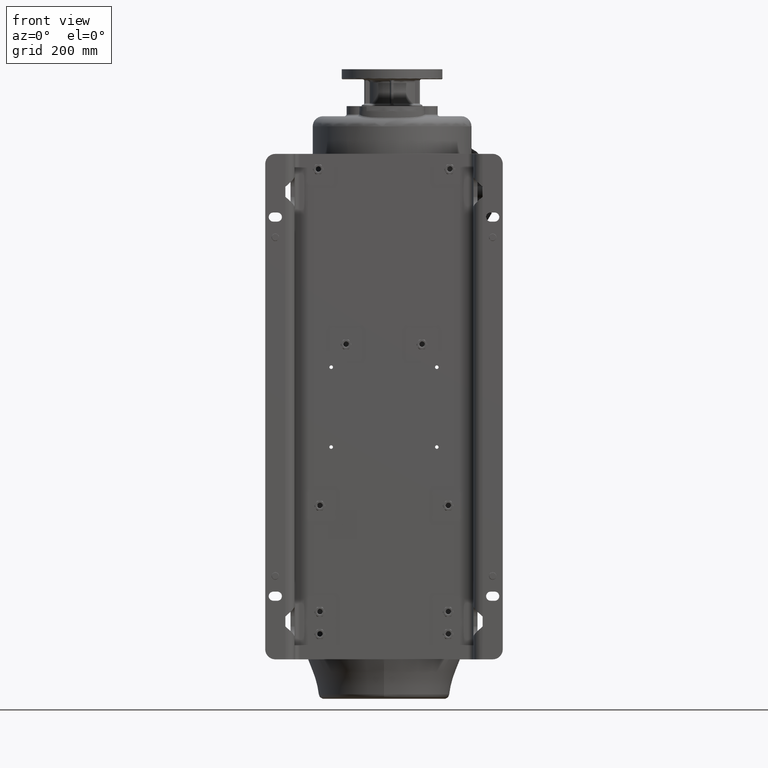
[diagram: clean part render]
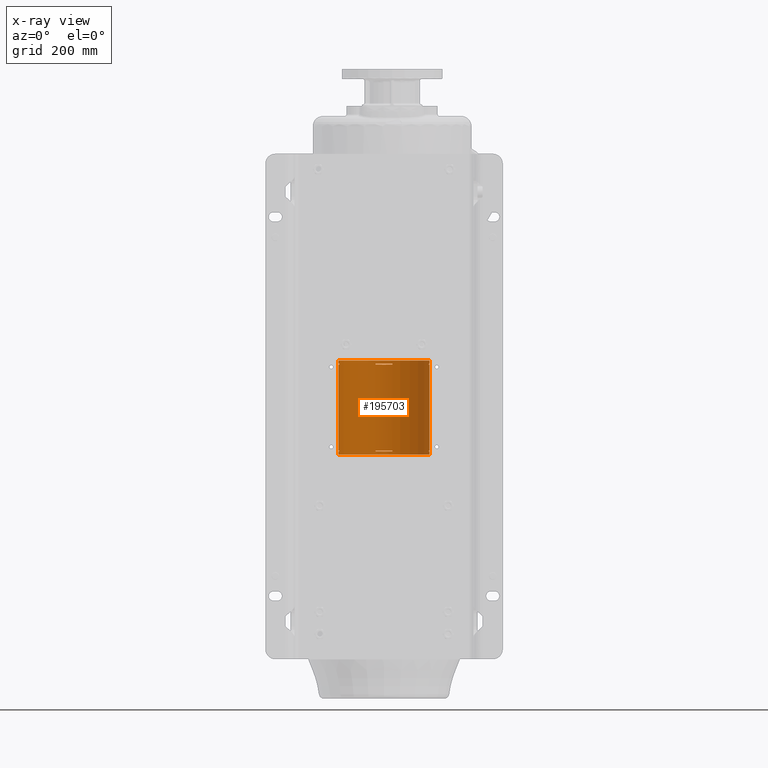
[diagram: x-ray — body ghosted, one internal face saturated and labeled with its STEP entity id]
A machine part, front view, then the same camera in x-ray: the body is ghosted and one INTERNAL B-rep face — a face not visible from any outside direction — is saturated and labeled: STEP entity #195703.
In plain terms, the highlighted cylindrical surface (partial cylindrical patch) has radius 90 mm, axis along (0, 0, 1).
Its self-contained STEP definition (entity closure, byte-faithful):
#61992=DIRECTION('',(0.E0,0.E0,-1.E0));
#61993=VECTOR('',#61992,1.696E2);
#61994=CARTESIAN_POINT('',(9.E1,1.6E2,-3.867E2));
#61995=LINE('',#61994,#61993);
#62020=DIRECTION('',(2.623542408960E-14,-1.128123235853E-12,-1.E0));
#62021=VECTOR('',#62020,6.5E0);
#62022=CARTESIAN_POINT('',(9.E1,1.6E2,-3.785E2));
#62023=LINE('',#62022,#62021);
#62033=DIRECTION('',(-2.842170943040E-14,1.128123235853E-12,-1.E0));
#62034=VECTOR('',#62033,6.5E0);
#62035=CARTESIAN_POINT('',(9.E1,1.6E2,-5.58E2));
#62036=LINE('',#62035,#62034);
#63404=CARTESIAN_POINT('',(-3.268496484496E-13,1.6E2,-5.645E2));
#63405=DIRECTION('',(0.E0,0.E0,1.E0));
#63406=DIRECTION('',(1.E0,0.E0,0.E0));
#63407=AXIS2_PLACEMENT_3D('',#63404,#63405,#63406);
#63418=CARTESIAN_POINT('',(-3.268496484496E-13,1.6E2,-5.565E2));
#63419=DIRECTION('',(0.E0,0.E0,1.E0));
#63420=DIRECTION('',(9.966335747907E-1,8.198486201713E-2,0.E0));
#63421=AXIS2_PLACEMENT_3D('',#63418,#63419,#63420);
#63423=DIRECTION('',(2.842170943040E-14,-7.579122514774E-14,1.E0));
#63424=VECTOR('',#63423,1.5E0);
#63425=CARTESIAN_POINT('',(8.847327330818E1,1.765069655036E2,-5.58E2));
#63426=LINE('',#63425,#63424);
#63427=CARTESIAN_POINT('',(-3.268496484496E-13,1.6E2,-5.58E2));
#63428=DIRECTION('',(0.E0,0.E0,1.E0));
#63429=DIRECTION('',(9.966335747907E-1,8.198486201713E-2,0.E0));
#63430=AXIS2_PLACEMENT_3D('',#63427,#63428,#63429);
#63432=CARTESIAN_POINT('',(-3.268496484496E-13,1.6E2,-5.58E2));
#63433=DIRECTION('',(0.E0,0.E0,1.E0));
#63434=DIRECTION('',(9.970736659799E-1,7.644674361577E-2,0.E0));
#63435=AXIS2_PLACEMENT_3D('',#63432,#63433,#63434);
#63437=CARTESIAN_POINT('',(-3.268496484496E-13,1.6E2,-5.58E2));
#63438=DIRECTION('',(0.E0,0.E0,1.E0));
#63439=DIRECTION('',(1.E0,-4.743267507163E-13,0.E0));
#63440=AXIS2_PLACEMENT_3D('',#63437,#63438,#63439);
#63442=DIRECTION('',(-2.186285340800E-14,-1.149986089261E-12,-1.E0));
#63443=VECTOR('',#63442,6.5E0);
#63444=CARTESIAN_POINT('',(-9.E1,1.6E2,-5.58E2));
#63445=LINE('',#63444,#63443);
#63446=CARTESIAN_POINT('',(-3.268496484496E-13,1.6E2,-5.58E2));
#63447=DIRECTION('',(0.E0,0.E0,1.E0));
#63448=DIRECTION('',(-9.970736659799E-1,7.644674361539E-2,0.E0));
#63449=AXIS2_PLACEMENT_3D('',#63446,#63447,#63448);
#63451=CARTESIAN_POINT('',(-3.268496484496E-13,1.6E2,-5.58E2));
#63452=DIRECTION('',(0.E0,0.E0,1.E0));
#63453=DIRECTION('',(-9.966335747907E-1,8.198486201730E-2,0.E0));
#63454=AXIS2_PLACEMENT_3D('',#63451,#63452,#63453);
#63456=CARTESIAN_POINT('',(-3.268496484496E-13,1.6E2,-5.58E2));
#63457=DIRECTION('',(0.E0,0.E0,1.E0));
#63458=DIRECTION('',(-9.830363700909E-1,1.834107278174E-1,0.E0));
#63459=AXIS2_PLACEMENT_3D('',#63456,#63457,#63458);
#63461=DIRECTION('',(-3.789561257387E-14,-2.084258691563E-13,1.E0));
#63462=VECTOR('',#63461,1.5E0);
#63463=CARTESIAN_POINT('',(-8.847327330818E1,1.765069655036E2,-5.58E2));
#63464=LINE('',#63463,#63462);
#63465=CARTESIAN_POINT('',(-3.268496484496E-13,1.6E2,-5.565E2));
#63466=DIRECTION('',(0.E0,0.E0,1.E0));
#63467=DIRECTION('',(-9.830363700909E-1,1.834107278174E-1,0.E0));
#63468=AXIS2_PLACEMENT_3D('',#63465,#63466,#63467);
#63470=DIRECTION('',(-2.202682480856E-12,-1.833200258261E-11,1.E0));
#63471=VECTOR('',#63470,2.E-1);
#63472=CARTESIAN_POINT('',(-8.969702173116E1,1.673786375816E2,-5.565E2));
#63473=LINE('',#63472,#63471);
#63474=CARTESIAN_POINT('',(-3.268496484496E-13,1.6E2,-5.563E2));
#63475=DIRECTION('',(0.E0,0.E0,1.E0));
#63476=DIRECTION('',(-9.966335747907E-1,8.198486201730E-2,0.E0));
#63477=AXIS2_PLACEMENT_3D('',#63474,#63475,#63476);
#63479=DIRECTION('',(0.E0,0.E0,-1.E0));
#63480=VECTOR('',#63479,1.696E2);
#63481=CARTESIAN_POINT('',(-9.E1,1.6E2,-3.867E2));
#63482=LINE('',#63481,#63480);
#63483=CARTESIAN_POINT('',(-3.268496484496E-13,1.6E2,-3.867E2));
#63484=DIRECTION('',(0.E0,0.E0,1.E0));
#63485=DIRECTION('',(-9.966335747907E-1,8.198486201730E-2,0.E0));
#63486=AXIS2_PLACEMENT_3D('',#63483,#63484,#63485);
#63488=DIRECTION('',(2.557953848737E-12,2.188471626142E-11,1.E0));
#63489=VECTOR('',#63488,1.999999999999E-1);
#63490=CARTESIAN_POINT('',(-8.969702173116E1,1.673786375816E2,-3.867E2));
#63491=LINE('',#63490,#63489);
#63492=CARTESIAN_POINT('',(-3.268496484496E-13,1.6E2,-3.865E2));
#63493=DIRECTION('',(0.E0,0.E0,1.E0));
#63494=DIRECTION('',(-9.830363700909E-1,1.834107278174E-1,0.E0));
#63495=AXIS2_PLACEMENT_3D('',#63492,#63493,#63494);
#63497=DIRECTION('',(0.E0,0.E0,1.E0));
#63498=VECTOR('',#63497,1.5E0);
#63499=CARTESIAN_POINT('',(-8.847327330818E1,1.765069655036E2,-3.865E2));
#63500=LINE('',#63499,#63498);
#63501=CARTESIAN_POINT('',(-3.268496484496E-13,1.6E2,-3.85E2));
#63502=DIRECTION('',(0.E0,0.E0,1.E0));
#63503=DIRECTION('',(-9.830363700909E-1,1.834107278174E-1,0.E0));
#63504=AXIS2_PLACEMENT_3D('',#63501,#63502,#63503);
#63506=CARTESIAN_POINT('',(-3.268496484496E-13,1.6E2,-3.85E2));
#63507=DIRECTION('',(0.E0,0.E0,1.E0));
#63508=DIRECTION('',(-9.966335747907E-1,8.198486201730E-2,0.E0));
#63509=AXIS2_PLACEMENT_3D('',#63506,#63507,#63508);
#63511=CARTESIAN_POINT('',(-3.268496484496E-13,1.6E2,-3.85E2));
#63512=DIRECTION('',(0.E0,0.E0,1.E0));
#63513=DIRECTION('',(-9.970736659799E-1,7.644674361537E-2,0.E0));
#63514=AXIS2_PLACEMENT_3D('',#63511,#63512,#63513);
#63516=DIRECTION('',(2.404913874880E-14,1.106260382445E-12,-1.E0));
#63517=VECTOR('',#63516,6.5E0);
#63518=CARTESIAN_POINT('',(-9.E1,1.6E2,-3.785E2));
#63519=LINE('',#63518,#63517);
#63520=CARTESIAN_POINT('',(-3.268496484496E-13,1.6E2,-3.85E2));
#63521=DIRECTION('',(0.E0,0.E0,1.E0));
#63522=DIRECTION('',(1.E0,-4.730635636305E-13,0.E0));
#63523=AXIS2_PLACEMENT_3D('',#63520,#63521,#63522);
#63525=CARTESIAN_POINT('',(-3.268496484496E-13,1.6E2,-3.85E2));
#63526=DIRECTION('',(0.E0,0.E0,1.E0));
#63527=DIRECTION('',(9.970736659799E-1,7.644674361577E-2,0.E0));
#63528=AXIS2_PLACEMENT_3D('',#63525,#63526,#63527);
#63530=CARTESIAN_POINT('',(-3.268496484496E-13,1.6E2,-3.85E2));
#63531=DIRECTION('',(0.E0,0.E0,1.E0));
#63532=DIRECTION('',(9.966335747907E-1,8.198486201711E-2,0.E0));
#63533=AXIS2_PLACEMENT_3D('',#63530,#63531,#63532);
#63535=DIRECTION('',(0.E0,0.E0,1.E0));
#63536=VECTOR('',#63535,1.5E0);
#63537=CARTESIAN_POINT('',(8.847327330818E1,1.765069655036E2,-3.865E2));
#63538=LINE('',#63537,#63536);
#63539=CARTESIAN_POINT('',(-3.268496484496E-13,1.6E2,-3.865E2));
#63540=DIRECTION('',(0.E0,0.E0,1.E0));
#63541=DIRECTION('',(9.966335747907E-1,8.198486201711E-2,0.E0));
#63542=AXIS2_PLACEMENT_3D('',#63539,#63540,#63541);
#63544=DIRECTION('',(2.557953848737E-12,-2.103206497851E-11,1.E0));
#63545=VECTOR('',#63544,1.999999999999E-1);
#63546=CARTESIAN_POINT('',(8.969702173116E1,1.673786375816E2,-3.867E2));
#63547=LINE('',#63546,#63545);
#63548=CARTESIAN_POINT('',(-3.268496484496E-13,1.6E2,-3.867E2));
#63549=DIRECTION('',(0.E0,0.E0,1.E0));
#63550=DIRECTION('',(1.E0,0.E0,0.E0));
#63551=AXIS2_PLACEMENT_3D('',#63548,#63549,#63550);
#63553=CARTESIAN_POINT('',(-3.268496484496E-13,1.6E2,-5.563E2));
#63554=DIRECTION('',(0.E0,0.E0,1.E0));
#63555=DIRECTION('',(1.E0,0.E0,0.E0));
#63556=AXIS2_PLACEMENT_3D('',#63553,#63554,#63555);
#63558=DIRECTION('',(-2.344791028008E-12,1.875832822406E-11,1.E0));
#63559=VECTOR('',#63558,2.E-1);
#63560=CARTESIAN_POINT('',(8.969702173116E1,1.673786375816E2,-5.565E2));
#63561=LINE('',#63560,#63559);
#63562=CARTESIAN_POINT('',(-3.268496484496E-13,1.6E2,-3.865E2));
#63563=DIRECTION('',(0.E0,0.E0,1.E0));
#63564=DIRECTION('',(1.853932584270E-1,9.826644084986E-1,0.E0));
#63565=AXIS2_PLACEMENT_3D('',#63562,#63563,#63564);
#63567=DIRECTION('',(0.E0,0.E0,1.E0));
#63568=VECTOR('',#63567,1.5E0);
#63569=CARTESIAN_POINT('',(1.668539325843E1,2.484397967649E2,-3.865E2));
#63570=LINE('',#63569,#63568);
#63571=CARTESIAN_POINT('',(-3.268496484496E-13,1.6E2,-3.85E2));
#63572=DIRECTION('',(0.E0,0.E0,1.E0));
#63573=DIRECTION('',(1.853932584270E-1,9.826644084986E-1,0.E0));
#63574=AXIS2_PLACEMENT_3D('',#63571,#63572,#63573);
#63576=CARTESIAN_POINT('',(-3.268496484496E-13,1.6E2,-3.85E2));
#63577=DIRECTION('',(0.E0,0.E0,1.E0));
#63578=DIRECTION('',(4.333135311519E-2,9.990607558288E-1,0.E0));
#63579=AXIS2_PLACEMENT_3D('',#63576,#63577,#63578);
#63581=CARTESIAN_POINT('',(-3.268496484496E-13,1.6E2,-3.85E2));
#63582=DIRECTION('',(0.E0,0.E0,1.E0));
#63583=DIRECTION('',(4.179629629634E-2,9.991261530037E-1,0.E0));
#63584=AXIS2_PLACEMENT_3D('',#63581,#63582,#63583);
#63586=CARTESIAN_POINT('',(-3.268496484496E-13,1.6E2,-3.85E2));
#63587=DIRECTION('',(0.E0,0.E0,1.E0));
#63588=DIRECTION('',(-4.179629629642E-2,9.991261530037E-1,0.E0));
#63589=AXIS2_PLACEMENT_3D('',#63586,#63587,#63588);
#63591=CARTESIAN_POINT('',(-3.268496484496E-13,1.6E2,-3.85E2));
#63592=DIRECTION('',(0.E0,0.E0,1.E0));
#63593=DIRECTION('',(-4.329495734210E-2,9.990623337254E-1,0.E0));
#63594=AXIS2_PLACEMENT_3D('',#63591,#63592,#63593);
#63596=DIRECTION('',(0.E0,-1.894780628694E-14,1.E0));
#63597=VECTOR('',#63596,1.5E0);
#63598=CARTESIAN_POINT('',(-1.668539325843E1,2.484397967649E2,-3.865E2));
#63599=LINE('',#63598,#63597);
#63600=CARTESIAN_POINT('',(-3.268496484496E-13,1.6E2,-3.865E2));
#63601=DIRECTION('',(0.E0,0.E0,1.E0));
#63602=DIRECTION('',(-4.329495734210E-2,9.990623337254E-1,0.E0));
#63603=AXIS2_PLACEMENT_3D('',#63600,#63601,#63602);
#63605=DIRECTION('',(0.E0,7.105427357603E-13,-1.E0));
#63606=VECTOR('',#63605,1.999999999999E-1);
#63607=CARTESIAN_POINT('',(-3.896546160789E0,2.499156100353E2,-3.865E2));
#63608=LINE('',#63607,#63606);
#63609=CARTESIAN_POINT('',(-3.268496484496E-13,1.6E2,-3.867E2));
#63610=DIRECTION('',(0.E0,0.E0,1.E0));
#63611=DIRECTION('',(4.333135311519E-2,9.990607558288E-1,0.E0));
#63612=AXIS2_PLACEMENT_3D('',#63609,#63610,#63611);
#63614=DIRECTION('',(1.509903313491E-13,7.105427357603E-13,-1.E0));
#63615=VECTOR('',#63614,1.999999999999E-1);
#63616=CARTESIAN_POINT('',(3.899821780367E0,2.499154680246E2,-3.865E2));
#63617=LINE('',#63616,#63615);
#63618=CARTESIAN_POINT('',(-3.268496484496E-13,1.6E2,-5.565E2));
#63619=DIRECTION('',(0.E0,0.E0,1.E0));
#63620=DIRECTION('',(1.853932584270E-1,9.826644084986E-1,0.E0));
#63621=AXIS2_PLACEMENT_3D('',#63618,#63619,#63620);
#63623=DIRECTION('',(7.105427357599E-14,5.684341886080E-13,1.E0));
#63624=VECTOR('',#63623,2.E-1);
#63625=CARTESIAN_POINT('',(1.086143051770E1,2.493422035049E2,-5.565E2));
#63626=LINE('',#63625,#63624);
#63627=CARTESIAN_POINT('',(-3.268496484496E-13,1.6E2,-5.563E2));
#63628=DIRECTION('',(0.E0,0.E0,1.E0));
#63629=DIRECTION('',(1.206825613077E-1,9.926911500543E-1,0.E0));
#63630=AXIS2_PLACEMENT_3D('',#63627,#63628,#63629);
#63632=DIRECTION('',(-4.085620730620E-12,5.684341886080E-13,1.E0));
#63633=VECTOR('',#63632,2.E-1);
#63634=CARTESIAN_POINT('',(3.600082257958E0,2.499279678839E2,-5.565E2));
#63635=LINE('',#63634,#63633);
#63636=CARTESIAN_POINT('',(-3.268496484496E-13,1.6E2,-5.565E2));
#63637=DIRECTION('',(0.E0,0.E0,1.E0));
#63638=DIRECTION('',(4.000091397735E-2,9.991996431549E-1,0.E0));
#63639=AXIS2_PLACEMENT_3D('',#63636,#63637,#63638);
#63641=DIRECTION('',(-4.203304371230E-12,4.263256414560E-13,1.E0));
#63642=VECTOR('',#63641,2.E-1);
#63643=CARTESIAN_POINT('',(-3.600082257958E0,2.499279678839E2,-5.565E2));
#63644=LINE('',#63643,#63642);
#63645=CARTESIAN_POINT('',(-3.268496484496E-13,1.6E2,-5.563E2));
#63646=DIRECTION('',(0.E0,0.E0,1.E0));
#63647=DIRECTION('',(-4.000091397732E-2,9.991996431550E-1,0.E0));
#63648=AXIS2_PLACEMENT_3D('',#63645,#63646,#63647);
#63650=DIRECTION('',(-1.243449787580E-13,7.105427357599E-13,1.E0));
#63651=VECTOR('',#63650,2.E-1);
#63652=CARTESIAN_POINT('',(-1.086143051770E1,2.493422035049E2,-5.565E2));
#63653=LINE('',#63652,#63651);
#63654=CARTESIAN_POINT('',(-3.268496484496E-13,1.6E2,-5.565E2));
#63655=DIRECTION('',(0.E0,0.E0,1.E0));
#63656=DIRECTION('',(-1.206825613077E-1,9.926911500543E-1,0.E0));
#63657=AXIS2_PLACEMENT_3D('',#63654,#63655,#63656);
#63659=DIRECTION('',(0.E0,0.E0,1.E0));
#63660=VECTOR('',#63659,1.5E0);
#63661=CARTESIAN_POINT('',(-1.668539325843E1,2.484397967649E2,-5.58E2));
#63662=LINE('',#63661,#63660);
#63663=CARTESIAN_POINT('',(-3.268496484496E-13,1.6E2,-5.58E2));
#63664=DIRECTION('',(0.E0,0.E0,1.E0));
#63665=DIRECTION('',(-1.206825613077E-1,9.926911500543E-1,0.E0));
#63666=AXIS2_PLACEMENT_3D('',#63663,#63664,#63665);
#63668=CARTESIAN_POINT('',(-3.268496484496E-13,1.6E2,-5.58E2));
#63669=DIRECTION('',(0.E0,0.E0,1.E0));
#63670=DIRECTION('',(-1.193291356861E-1,9.928547513994E-1,0.E0));
#63671=AXIS2_PLACEMENT_3D('',#63668,#63669,#63670);
#63673=CARTESIAN_POINT('',(-3.268496484496E-13,1.6E2,-5.58E2));
#63674=DIRECTION('',(0.E0,0.E0,1.E0));
#63675=DIRECTION('',(-4.111111111111E-2,9.991545809049E-1,0.E0));
#63676=AXIS2_PLACEMENT_3D('',#63673,#63674,#63675);
#63678=CARTESIAN_POINT('',(-3.268496484496E-13,1.6E2,-5.58E2));
#63679=DIRECTION('',(0.E0,0.E0,1.E0));
#63680=DIRECTION('',(-4.000091397732E-2,9.991996431550E-1,0.E0));
#63681=AXIS2_PLACEMENT_3D('',#63678,#63679,#63680);
#63683=CARTESIAN_POINT('',(-3.268496484496E-13,1.6E2,-5.58E2));
#63684=DIRECTION('',(0.E0,0.E0,1.E0));
#63685=DIRECTION('',(4.000091397735E-2,9.991996431549E-1,0.E0));
#63686=AXIS2_PLACEMENT_3D('',#63683,#63684,#63685);
#63688=CARTESIAN_POINT('',(-3.268496484496E-13,1.6E2,-5.58E2));
#63689=DIRECTION('',(0.E0,0.E0,1.E0));
#63690=DIRECTION('',(4.111111111111E-2,9.991545809049E-1,0.E0));
#63691=AXIS2_PLACEMENT_3D('',#63688,#63689,#63690);
#63693=CARTESIAN_POINT('',(-3.268496484496E-13,1.6E2,-5.58E2));
#63694=DIRECTION('',(0.E0,0.E0,1.E0));
#63695=DIRECTION('',(1.193291356862E-1,9.928547513994E-1,0.E0));
#63696=AXIS2_PLACEMENT_3D('',#63693,#63694,#63695);
#63698=CARTESIAN_POINT('',(-3.268496484496E-13,1.6E2,-5.58E2));
#63699=DIRECTION('',(0.E0,0.E0,1.E0));
#63700=DIRECTION('',(1.206825613077E-1,9.926911500543E-1,0.E0));
#63701=AXIS2_PLACEMENT_3D('',#63698,#63699,#63700);
#63703=CARTESIAN_POINT('',(-3.268496484496E-13,1.6E2,-5.58E2));
#63704=DIRECTION('',(0.E0,0.E0,1.E0));
#63705=DIRECTION('',(1.853932584270E-1,9.826644084986E-1,0.E0));
#63706=AXIS2_PLACEMENT_3D('',#63703,#63704,#63705);
#63708=DIRECTION('',(0.E0,1.894780628694E-14,1.E0));
#63709=VECTOR('',#63708,1.5E0);
#63710=CARTESIAN_POINT('',(1.668539325843E1,2.484397967649E2,-5.58E2));
#63711=LINE('',#63710,#63709);
#64916=CARTESIAN_POINT('',(-3.268496484496E-13,1.6E2,-3.785E2));
#64917=DIRECTION('',(0.E0,0.E0,1.E0));
#64918=DIRECTION('',(1.E0,0.E0,0.E0));
#64919=AXIS2_PLACEMENT_3D('',#64916,#64917,#64918);
#114571=CARTESIAN_POINT('',(-9.E1,1.6E2,-3.785E2));
#114573=VERTEX_POINT('',#114571);
#114576=CARTESIAN_POINT('',(9.E1,1.6E2,-3.785E2));
#114578=VERTEX_POINT('',#114576);
#114603=CARTESIAN_POINT('',(-9.E1,1.6E2,-5.563E2));
#114605=VERTEX_POINT('',#114603);
#114607=CARTESIAN_POINT('',(9.E1,1.6E2,-5.563E2));
#114609=VERTEX_POINT('',#114607);
#114627=CARTESIAN_POINT('',(-8.969702173116E1,1.673786375816E2,-5.563E2));
#114628=VERTEX_POINT('',#114627);
#114629=CARTESIAN_POINT('',(9.E1,1.6E2,-5.645E2));
#114630=CARTESIAN_POINT('',(-9.E1,1.6E2,-5.645E2));
#114631=VERTEX_POINT('',#114629);
#114632=VERTEX_POINT('',#114630);
#114633=CARTESIAN_POINT('',(1.086143051770E1,2.493422035049E2,-5.563E2));
#114634=CARTESIAN_POINT('',(3.600082257958E0,2.499279678839E2,-5.563E2));
#114635=VERTEX_POINT('',#114633);
#114636=VERTEX_POINT('',#114634);
#114637=CARTESIAN_POINT('',(8.969702173116E1,1.673786375816E2,-5.563E2));
#114638=VERTEX_POINT('',#114637);
#114675=CARTESIAN_POINT('',(-3.600082257959E0,2.499279678839E2,-5.563E2));
#114676=CARTESIAN_POINT('',(-1.086143051770E1,2.493422035049E2,-5.563E2));
#114677=VERTEX_POINT('',#114675);
#114678=VERTEX_POINT('',#114676);
#114717=CARTESIAN_POINT('',(9.E1,1.6E2,-3.867E2));
#114718=CARTESIAN_POINT('',(8.969702173116E1,1.673786375816E2,-3.867E2));
#114719=VERTEX_POINT('',#114717);
#114720=VERTEX_POINT('',#114718);
#114721=CARTESIAN_POINT('',(-9.E1,1.6E2,-3.867E2));
#114722=VERTEX_POINT('',#114721);
#114723=CARTESIAN_POINT('',(3.899821780367E0,2.499154680246E2,-3.867E2));
#114724=CARTESIAN_POINT('',(-3.896546160789E0,2.499156100353E2,-3.867E2));
#114725=VERTEX_POINT('',#114723);
#114726=VERTEX_POINT('',#114724);
#114727=CARTESIAN_POINT('',(-8.969702173116E1,1.673786375816E2,-3.867E2));
#114728=VERTEX_POINT('',#114727);
#115203=CARTESIAN_POINT('',(8.969702173116E1,1.673786375815E2,-3.865E2));
#115204=CARTESIAN_POINT('',(8.847327330818E1,1.765069655036E2,-3.865E2));
#115205=VERTEX_POINT('',#115203);
#115206=VERTEX_POINT('',#115204);
#115207=CARTESIAN_POINT('',(1.668539325843E1,2.484397967649E2,-3.865E2));
#115208=CARTESIAN_POINT('',(3.899821780367E0,2.499154680246E2,-3.865E2));
#115209=VERTEX_POINT('',#115207);
#115210=VERTEX_POINT('',#115208);
#115211=CARTESIAN_POINT('',(-3.896546160789E0,2.499156100353E2,-3.865E2));
#115212=CARTESIAN_POINT('',(-1.668539325843E1,2.484397967649E2,-3.865E2));
#115213=VERTEX_POINT('',#115211);
#115214=VERTEX_POINT('',#115212);
#115215=CARTESIAN_POINT('',(-8.847327330818E1,1.765069655036E2,-3.865E2));
#115216=CARTESIAN_POINT('',(-8.969702173116E1,1.673786375816E2,-3.865E2));
#115217=VERTEX_POINT('',#115215);
#115218=VERTEX_POINT('',#115216);
#115219=CARTESIAN_POINT('',(9.E1,1.6E2,-3.85E2));
#115220=CARTESIAN_POINT('',(8.973662993819E1,1.668802069255E2,-3.85E2));
#115221=VERTEX_POINT('',#115219);
#115222=VERTEX_POINT('',#115220);
#115223=CARTESIAN_POINT('',(8.969702173116E1,1.673786375815E2,-3.85E2));
#115224=CARTESIAN_POINT('',(8.847327330818E1,1.765069655036E2,-3.85E2));
#115225=VERTEX_POINT('',#115223);
#115226=VERTEX_POINT('',#115224);
#115227=CARTESIAN_POINT('',(1.668539325843E1,2.484397967649E2,-3.85E2));
#115228=CARTESIAN_POINT('',(3.899821780367E0,2.499154680246E2,-3.85E2));
#115229=VERTEX_POINT('',#115227);
#115230=VERTEX_POINT('',#115228);
#115231=CARTESIAN_POINT('',(3.761666666670E0,2.499213537703E2,-3.85E2));
#115232=CARTESIAN_POINT('',(-3.761666666681E0,2.499213537703E2,-3.85E2));
#115233=VERTEX_POINT('',#115231);
#115234=VERTEX_POINT('',#115232);
#115235=CARTESIAN_POINT('',(-3.896546160789E0,2.499156100353E2,-3.85E2));
#115236=CARTESIAN_POINT('',(-1.668539325843E1,2.484397967649E2,-3.85E2));
#115237=VERTEX_POINT('',#115235);
#115238=VERTEX_POINT('',#115236);
#115239=CARTESIAN_POINT('',(-8.847327330818E1,1.765069655036E2,-3.85E2));
#115240=CARTESIAN_POINT('',(-8.969702173116E1,1.673786375816E2,-3.85E2));
#115241=VERTEX_POINT('',#115239);
#115242=VERTEX_POINT('',#115240);
#115243=CARTESIAN_POINT('',(-8.973662993819E1,1.668802069254E2,-3.85E2));
#115244=CARTESIAN_POINT('',(-9.E1,1.6E2,-3.85E2));
#115245=VERTEX_POINT('',#115243);
#115246=VERTEX_POINT('',#115244);
#115535=CARTESIAN_POINT('',(-9.E1,1.6E2,-5.58E2));
#115537=VERTEX_POINT('',#115535);
#115539=CARTESIAN_POINT('',(9.E1,1.6E2,-5.58E2));
#115541=VERTEX_POINT('',#115539);
#115543=CARTESIAN_POINT('',(8.969702173116E1,1.673786375815E2,-5.565E2));
#115544=CARTESIAN_POINT('',(8.847327330818E1,1.765069655036E2,-5.565E2));
#115545=VERTEX_POINT('',#115543);
#115546=VERTEX_POINT('',#115544);
#115547=CARTESIAN_POINT('',(1.668539325843E1,2.484397967649E2,-5.565E2));
#115548=CARTESIAN_POINT('',(1.086143051770E1,2.493422035049E2,-5.565E2));
#115549=VERTEX_POINT('',#115547);
#115550=VERTEX_POINT('',#115548);
#115551=CARTESIAN_POINT('',(3.600082257961E0,2.499279678839E2,-5.565E2));
#115552=CARTESIAN_POINT('',(-3.600082257955E0,2.499279678839E2,-5.565E2));
#115553=VERTEX_POINT('',#115551);
#115554=VERTEX_POINT('',#115552);
#115555=CARTESIAN_POINT('',(-1.086143051770E1,2.493422035049E2,-5.565E2));
#115556=CARTESIAN_POINT('',(-1.668539325843E1,2.484397967649E2,-5.565E2));
#115557=VERTEX_POINT('',#115555);
#115558=VERTEX_POINT('',#115556);
#115559=CARTESIAN_POINT('',(-8.847327330818E1,1.765069655036E2,-5.565E2));
#115560=CARTESIAN_POINT('',(-8.969702173116E1,1.673786375816E2,-5.565E2));
#115561=VERTEX_POINT('',#115559);
#115562=VERTEX_POINT('',#115560);
#115563=CARTESIAN_POINT('',(8.973662993819E1,1.668802069255E2,-5.58E2));
#115564=VERTEX_POINT('',#115563);
#115565=CARTESIAN_POINT('',(8.969702173116E1,1.673786375815E2,-5.58E2));
#115566=CARTESIAN_POINT('',(8.847327330818E1,1.765069655036E2,-5.58E2));
#115567=VERTEX_POINT('',#115565);
#115568=VERTEX_POINT('',#115566);
#115569=CARTESIAN_POINT('',(1.668539325843E1,2.484397967649E2,-5.58E2));
#115570=CARTESIAN_POINT('',(1.086143051770E1,2.493422035049E2,-5.58E2));
#115571=VERTEX_POINT('',#115569);
#115572=VERTEX_POINT('',#115570);
#115573=CARTESIAN_POINT('',(1.073962221176E1,2.493569276259E2,-5.58E2));
#115574=CARTESIAN_POINT('',(3.7E0,2.499239122814E2,-5.58E2));
#115575=VERTEX_POINT('',#115573);
#115576=VERTEX_POINT('',#115574);
#115577=CARTESIAN_POINT('',(3.600082257961E0,2.499279678839E2,-5.58E2));
#115578=CARTESIAN_POINT('',(-3.600082257955E0,2.499279678839E2,-5.58E2));
#115579=VERTEX_POINT('',#115577);
#115580=VERTEX_POINT('',#115578);
#115581=CARTESIAN_POINT('',(-3.7E0,2.499239122814E2,-5.58E2));
#115582=CARTESIAN_POINT('',(-1.073962221175E1,2.493569276259E2,-5.58E2));
#115583=VERTEX_POINT('',#115581);
#115584=VERTEX_POINT('',#115582);
#115585=CARTESIAN_POINT('',(-1.086143051770E1,2.493422035049E2,-5.58E2));
#115586=CARTESIAN_POINT('',(-1.668539325843E1,2.484397967649E2,-5.58E2));
#115587=VERTEX_POINT('',#115585);
#115588=VERTEX_POINT('',#115586);
#115589=CARTESIAN_POINT('',(-8.847327330818E1,1.765069655036E2,-5.58E2));
#115590=CARTESIAN_POINT('',(-8.969702173116E1,1.673786375816E2,-5.58E2));
#115591=VERTEX_POINT('',#115589);
#115592=VERTEX_POINT('',#115590);
#115593=CARTESIAN_POINT('',(-8.973662993819E1,1.668802069254E2,-5.58E2));
#115594=VERTEX_POINT('',#115593);
#195577=CARTESIAN_POINT('',(-3.268496484496E-13,1.6E2,-5.645E2));
#195578=DIRECTION('',(0.E0,0.E0,1.E0));
#195579=DIRECTION('',(1.E0,0.E0,0.E0));
#195580=AXIS2_PLACEMENT_3D('',#195577,#195578,#195579);
#195581=CYLINDRICAL_SURFACE('',#195580,9.E1);
#195582=ORIENTED_EDGE('',*,*,#194897,.T.);
#195584=ORIENTED_EDGE('',*,*,#195583,.F.);
#195585=ORIENTED_EDGE('',*,*,#195264,.F.);
#195587=ORIENTED_EDGE('',*,*,#195586,.F.);
#195588=ORIENTED_EDGE('',*,*,#195260,.F.);
#195589=ORIENTED_EDGE('',*,*,#194705,.T.);
#195590=ORIENTED_EDGE('',*,*,#195567,.T.);
#195591=ORIENTED_EDGE('',*,*,#195000,.F.);
#195592=ORIENTED_EDGE('',*,*,#195312,.F.);
#195594=ORIENTED_EDGE('',*,*,#195593,.F.);
#195595=ORIENTED_EDGE('',*,*,#195308,.F.);
#195597=ORIENTED_EDGE('',*,*,#195596,.T.);
#195598=ORIENTED_EDGE('',*,*,#194837,.T.);
#195600=ORIENTED_EDGE('',*,*,#195599,.T.);
#195602=ORIENTED_EDGE('',*,*,#195601,.T.);
#195603=ORIENTED_EDGE('',*,*,#195028,.F.);
#195605=ORIENTED_EDGE('',*,*,#195604,.F.);
#195607=ORIENTED_EDGE('',*,*,#195606,.T.);
#195609=ORIENTED_EDGE('',*,*,#195608,.F.);
#195611=ORIENTED_EDGE('',*,*,#195610,.T.);
#195613=ORIENTED_EDGE('',*,*,#195612,.T.);
#195615=ORIENTED_EDGE('',*,*,#195614,.T.);
#195617=ORIENTED_EDGE('',*,*,#195616,.T.);
#195618=ORIENTED_EDGE('',*,*,#195014,.F.);
#195620=ORIENTED_EDGE('',*,*,#195619,.F.);
#195621=ORIENTED_EDGE('',*,*,#194694,.T.);
#195623=ORIENTED_EDGE('',*,*,#195622,.T.);
#195625=ORIENTED_EDGE('',*,*,#195624,.T.);
#195627=ORIENTED_EDGE('',*,*,#195626,.T.);
#195629=ORIENTED_EDGE('',*,*,#195628,.F.);
#195631=ORIENTED_EDGE('',*,*,#195630,.F.);
#195633=ORIENTED_EDGE('',*,*,#195632,.F.);
#195635=ORIENTED_EDGE('',*,*,#195634,.F.);
#195636=ORIENTED_EDGE('',*,*,#194680,.T.);
#195638=ORIENTED_EDGE('',*,*,#195637,.T.);
#195640=ORIENTED_EDGE('',*,*,#195639,.F.);
#195641=EDGE_LOOP('',(#195582,#195584,#195585,#195587,#195588,#195589,#195590,
#195591,#195592,#195594,#195595,#195597,#195598,#195600,#195602,#195603,#195605,
#195607,#195609,#195611,#195613,#195615,#195617,#195618,#195620,#195621,#195623,
#195625,#195627,#195629,#195631,#195633,#195635,#195636,#195638,#195640));
#195642=FACE_OUTER_BOUND('',#195641,.F.);
#195644=ORIENTED_EDGE('',*,*,#195643,.F.);
#195646=ORIENTED_EDGE('',*,*,#195645,.T.);
#195648=ORIENTED_EDGE('',*,*,#195647,.T.);
#195650=ORIENTED_EDGE('',*,*,#195649,.T.);
#195652=ORIENTED_EDGE('',*,*,#195651,.T.);
#195654=ORIENTED_EDGE('',*,*,#195653,.T.);
#195656=ORIENTED_EDGE('',*,*,#195655,.T.);
#195658=ORIENTED_EDGE('',*,*,#195657,.F.);
#195660=ORIENTED_EDGE('',*,*,#195659,.F.);
#195662=ORIENTED_EDGE('',*,*,#195661,.T.);
#195664=ORIENTED_EDGE('',*,*,#195663,.F.);
#195666=ORIENTED_EDGE('',*,*,#195665,.F.);
#195667=EDGE_LOOP('',(#195644,#195646,#195648,#195650,#195652,#195654,#195656,
#195658,#195660,#195662,#195664,#195666));
#195668=FACE_BOUND('',#195667,.F.);
#195669=ORIENTED_EDGE('',*,*,#194883,.T.);
#195671=ORIENTED_EDGE('',*,*,#195670,.T.);
#195673=ORIENTED_EDGE('',*,*,#195672,.T.);
#195675=ORIENTED_EDGE('',*,*,#195674,.F.);
#195676=ORIENTED_EDGE('',*,*,#194867,.T.);
#195678=ORIENTED_EDGE('',*,*,#195677,.T.);
#195680=ORIENTED_EDGE('',*,*,#195679,.T.);
#195682=ORIENTED_EDGE('',*,*,#195681,.F.);
#195683=ORIENTED_EDGE('',*,*,#194851,.T.);
#195685=ORIENTED_EDGE('',*,*,#195684,.F.);
#195686=ORIENTED_EDGE('',*,*,#195294,.F.);
#195688=ORIENTED_EDGE('',*,*,#195687,.F.);
#195689=ORIENTED_EDGE('',*,*,#195290,.F.);
#195691=ORIENTED_EDGE('',*,*,#195690,.F.);
#195692=ORIENTED_EDGE('',*,*,#195286,.F.);
#195694=ORIENTED_EDGE('',*,*,#195693,.F.);
#195695=ORIENTED_EDGE('',*,*,#195282,.F.);
#195697=ORIENTED_EDGE('',*,*,#195696,.F.);
#195698=ORIENTED_EDGE('',*,*,#195278,.F.);
#195700=ORIENTED_EDGE('',*,*,#195699,.T.);
#195701=EDGE_LOOP('',(#195669,#195671,#195673,#195675,#195676,#195678,#195680,
#195682,#195683,#195685,#195686,#195688,#195689,#195691,#195692,#195694,#195695,
#195697,#195698,#195700));
#195702=FACE_BOUND('',#195701,.F.);
#195703=ADVANCED_FACE('',(#195642,#195668,#195702),#195581,.F.);
#63408=CIRCLE('',#63407,9.E1);
#63422=CIRCLE('',#63421,9.E1);
#63431=CIRCLE('',#63430,9.E1);
#63436=CIRCLE('',#63435,9.E1);
#63441=CIRCLE('',#63440,9.E1);
#63450=CIRCLE('',#63449,9.E1);
#63455=CIRCLE('',#63454,9.E1);
#63460=CIRCLE('',#63459,9.E1);
#63469=CIRCLE('',#63468,9.E1);
#63478=CIRCLE('',#63477,9.E1);
#63487=CIRCLE('',#63486,9.E1);
#63496=CIRCLE('',#63495,9.E1);
#63505=CIRCLE('',#63504,9.E1);
#63510=CIRCLE('',#63509,9.E1);
#63515=CIRCLE('',#63514,9.E1);
#63524=CIRCLE('',#63523,9.E1);
#63529=CIRCLE('',#63528,9.E1);
#63534=CIRCLE('',#63533,9.E1);
#63543=CIRCLE('',#63542,9.E1);
#63552=CIRCLE('',#63551,9.E1);
#63557=CIRCLE('',#63556,9.E1);
#63566=CIRCLE('',#63565,9.E1);
#63575=CIRCLE('',#63574,9.E1);
#63580=CIRCLE('',#63579,9.E1);
#63585=CIRCLE('',#63584,9.E1);
#63590=CIRCLE('',#63589,9.E1);
#63595=CIRCLE('',#63594,9.E1);
#63604=CIRCLE('',#63603,9.E1);
#63613=CIRCLE('',#63612,9.E1);
#63622=CIRCLE('',#63621,9.E1);
#63631=CIRCLE('',#63630,9.E1);
#63640=CIRCLE('',#63639,9.E1);
#63649=CIRCLE('',#63648,9.E1);
#63658=CIRCLE('',#63657,9.E1);
#63667=CIRCLE('',#63666,9.E1);
#63672=CIRCLE('',#63671,9.E1);
#63677=CIRCLE('',#63676,9.E1);
#63682=CIRCLE('',#63681,9.E1);
#63687=CIRCLE('',#63686,9.E1);
#63692=CIRCLE('',#63691,9.E1);
#63697=CIRCLE('',#63696,9.E1);
#63702=CIRCLE('',#63701,9.E1);
#63707=CIRCLE('',#63706,9.E1);
#64920=CIRCLE('',#64919,9.E1);
#194680=EDGE_CURVE('',#114719,#114609,#61995,.T.);
#194694=EDGE_CURVE('',#114578,#115221,#62023,.T.);
#194705=EDGE_CURVE('',#115541,#114631,#62036,.T.);
#194837=EDGE_CURVE('',#115561,#115562,#63469,.T.);
#194851=EDGE_CURVE('',#115557,#115558,#63658,.T.);
#194867=EDGE_CURVE('',#115553,#115554,#63640,.T.);
#194883=EDGE_CURVE('',#115549,#115550,#63622,.T.);
#194897=EDGE_CURVE('',#115545,#115546,#63422,.T.);
#195000=EDGE_CURVE('',#115537,#114632,#63445,.T.);
#195014=EDGE_CURVE('',#114573,#115246,#63519,.T.);
#195028=EDGE_CURVE('',#114722,#114605,#63482,.T.);
#195260=EDGE_CURVE('',#115541,#115564,#63441,.T.);
#195264=EDGE_CURVE('',#115567,#115568,#63431,.T.);
#195278=EDGE_CURVE('',#115571,#115572,#63707,.T.);
#195282=EDGE_CURVE('',#115575,#115576,#63697,.T.);
#195286=EDGE_CURVE('',#115579,#115580,#63687,.T.);
#195290=EDGE_CURVE('',#115583,#115584,#63677,.T.);
#195294=EDGE_CURVE('',#115587,#115588,#63667,.T.);
#195308=EDGE_CURVE('',#115591,#115592,#63460,.T.);
#195312=EDGE_CURVE('',#115594,#115537,#63450,.T.);
#195567=EDGE_CURVE('',#114631,#114632,#63408,.T.);
#195583=EDGE_CURVE('',#115568,#115546,#63426,.T.);
#195586=EDGE_CURVE('',#115564,#115567,#63436,.T.);
#195593=EDGE_CURVE('',#115592,#115594,#63455,.T.);
#195596=EDGE_CURVE('',#115591,#115561,#63464,.T.);
#195599=EDGE_CURVE('',#115562,#114628,#63473,.T.);
#195601=EDGE_CURVE('',#114628,#114605,#63478,.T.);
#195604=EDGE_CURVE('',#114728,#114722,#63487,.T.);
#195606=EDGE_CURVE('',#114728,#115218,#63491,.T.);
#195608=EDGE_CURVE('',#115217,#115218,#63496,.T.);
#195610=EDGE_CURVE('',#115217,#115241,#63500,.T.);
#195612=EDGE_CURVE('',#115241,#115242,#63505,.T.);
#195614=EDGE_CURVE('',#115242,#115245,#63510,.T.);
#195616=EDGE_CURVE('',#115245,#115246,#63515,.T.);
#195619=EDGE_CURVE('',#114578,#114573,#64920,.T.);
#195622=EDGE_CURVE('',#115221,#115222,#63524,.T.);
#195624=EDGE_CURVE('',#115222,#115225,#63529,.T.);
#195626=EDGE_CURVE('',#115225,#115226,#63534,.T.);
#195628=EDGE_CURVE('',#115206,#115226,#63538,.T.);
#195630=EDGE_CURVE('',#115205,#115206,#63543,.T.);
#195632=EDGE_CURVE('',#114720,#115205,#63547,.T.);
#195634=EDGE_CURVE('',#114719,#114720,#63552,.T.);
#195637=EDGE_CURVE('',#114609,#114638,#63557,.T.);
#195639=EDGE_CURVE('',#115545,#114638,#63561,.T.);
#195643=EDGE_CURVE('',#115209,#115210,#63566,.T.);
#195645=EDGE_CURVE('',#115209,#115229,#63570,.T.);
#195647=EDGE_CURVE('',#115229,#115230,#63575,.T.);
#195649=EDGE_CURVE('',#115230,#115233,#63580,.T.);
#195651=EDGE_CURVE('',#115233,#115234,#63585,.T.);
#195653=EDGE_CURVE('',#115234,#115237,#63590,.T.);
#195655=EDGE_CURVE('',#115237,#115238,#63595,.T.);
#195657=EDGE_CURVE('',#115214,#115238,#63599,.T.);
#195659=EDGE_CURVE('',#115213,#115214,#63604,.T.);
#195661=EDGE_CURVE('',#115213,#114726,#63608,.T.);
#195663=EDGE_CURVE('',#114725,#114726,#63613,.T.);
#195665=EDGE_CURVE('',#115210,#114725,#63617,.T.);
#195670=EDGE_CURVE('',#115550,#114635,#63626,.T.);
#195672=EDGE_CURVE('',#114635,#114636,#63631,.T.);
#195674=EDGE_CURVE('',#115553,#114636,#63635,.T.);
#195677=EDGE_CURVE('',#115554,#114677,#63644,.T.);
#195679=EDGE_CURVE('',#114677,#114678,#63649,.T.);
#195681=EDGE_CURVE('',#115557,#114678,#63653,.T.);
#195684=EDGE_CURVE('',#115588,#115558,#63662,.T.);
#195687=EDGE_CURVE('',#115584,#115587,#63672,.T.);
#195690=EDGE_CURVE('',#115580,#115583,#63682,.T.);
#195693=EDGE_CURVE('',#115576,#115579,#63692,.T.);
#195696=EDGE_CURVE('',#115572,#115575,#63702,.T.);
#195699=EDGE_CURVE('',#115571,#115549,#63711,.T.);